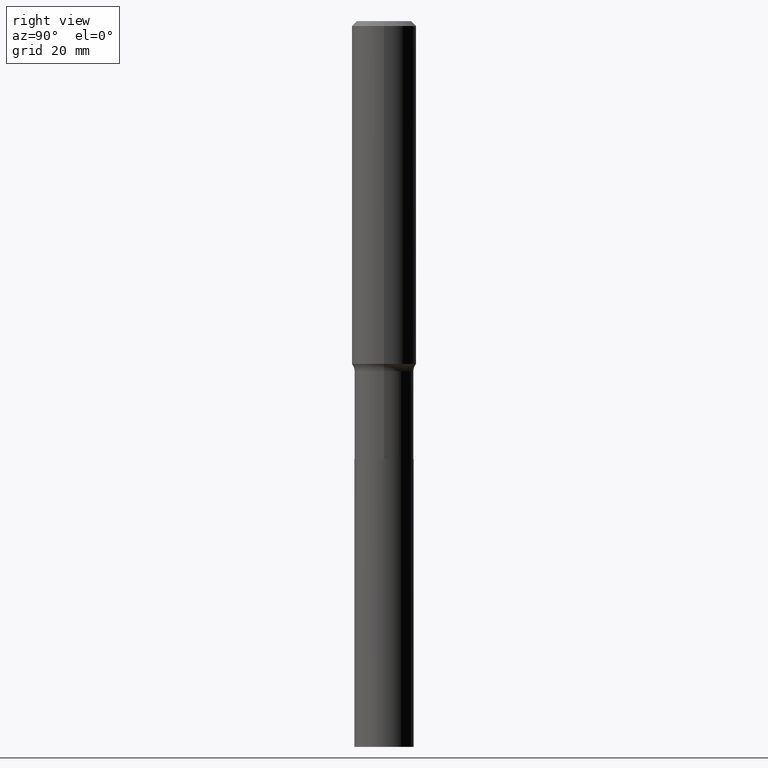
[diagram: clean part render]
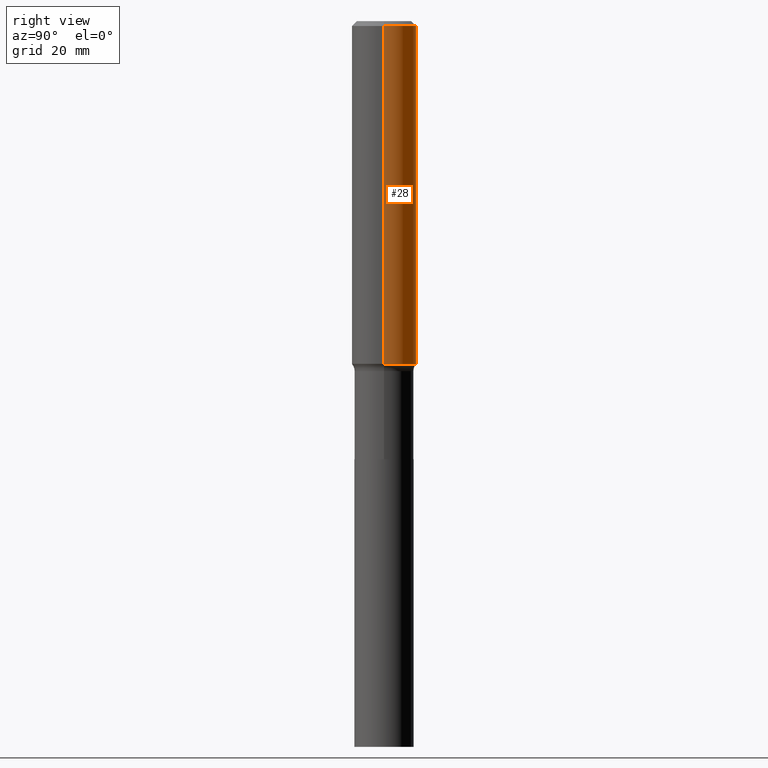
[diagram: same view with one face highlighted and labeled with its STEP entity id]
A machine part, right view. The second image highlights one B-rep face of the part: STEP entity #28.
In plain terms, the highlighted cylindrical surface (edge-blend (fillet) strip) has radius 5.9995 mm, axis along (-0, 0, 1).
Its self-contained STEP definition (entity closure, byte-faithful):
#5 = AXIS2_PLACEMENT_3D ( 'NONE', #292, #16, #157 ) ;
#6 = ORIENTED_EDGE ( 'NONE', *, *, #386, .T. ) ;
#16 = DIRECTION ( 'NONE',  ( -2.445468806185136597E-29, 3.491481338843145583E-15, 1.000000000000000000 ) ) ;
#18 = VERTEX_POINT ( 'NONE', #390 ) ;
#28 = ADVANCED_FACE ( 'NONE', ( #36 ), #95, .T. ) ;
#34 = EDGE_CURVE ( 'NONE', #452, #145, #318, .T. ) ;
#36 = FACE_OUTER_BOUND ( 'NONE', #366, .T. ) ;
#60 = CARTESIAN_POINT ( 'NONE',  ( 0.000000000000000000, 0.000000000000000000, 0.000000000000000000 ) ) ;
#67 = DIRECTION ( 'NONE',  ( -2.445468806185136877E-29, 3.491481338843145188E-15, 1.000000000000000000 ) ) ;
#95 = CYLINDRICAL_SURFACE ( 'NONE', #132, 0.2362000000000001598 ) ;
#132 = AXIS2_PLACEMENT_3D ( 'NONE', #60, #305, #279 ) ;
#145 = VERTEX_POINT ( 'NONE', #383 ) ;
#156 = ORIENTED_EDGE ( 'NONE', *, *, #34, .T. ) ;
#157 = DIRECTION ( 'NONE',  ( 1.000000000000000000, -6.982962677686266711E-15, 0.000000000000000000 ) ) ;
#162 = VECTOR ( 'NONE', #67, 39.37007874015748143 ) ;
#174 = CARTESIAN_POINT ( 'NONE',  ( 6.139311538755103453E-29, -8.765309791191448647E-15, -2.510484502287419595 ) ) ;
#194 = CARTESIAN_POINT ( 'NONE',  ( -0.2362000000000001598, 1.678301941865357775E-15, -1.161852468318209598E-29 ) ) ;
#197 = VERTEX_POINT ( 'NONE', #246 ) ;
#233 = DIRECTION ( 'NONE',  ( 1.000000000000000000, -6.982962677686263555E-15, 0.000000000000000000 ) ) ;
#246 = CARTESIAN_POINT ( 'NONE',  ( -0.2361999999999999933, -2.766204545647972550E-15, -0.03543000000000023908 ) ) ;
#256 = LINE ( 'NONE', #194, #303 ) ;
#260 = EDGE_CURVE ( 'NONE', #452, #18, #286, .T. ) ;
#261 = DIRECTION ( 'NONE',  ( -2.445468806185136877E-29, 3.491481338843145188E-15, 1.000000000000000000 ) ) ;
#268 = ORIENTED_EDGE ( 'NONE', *, *, #409, .F. ) ;
#279 = DIRECTION ( 'NONE',  ( 1.000000000000000000, -6.982962677686266711E-15, 4.876176775795936353E-29 ) ) ;
#286 = LINE ( 'NONE', #395, #162 ) ;
#292 = CARTESIAN_POINT ( 'NONE',  ( 8.664295980313996991E-31, -1.237031838352134818E-16, -0.03543000000000023908 ) ) ;
#303 = VECTOR ( 'NONE', #261, 39.37007874015748143 ) ;
#305 = DIRECTION ( 'NONE',  ( -2.445468806185136597E-29, 3.491481338843145583E-15, 1.000000000000000000 ) ) ;
#318 = CIRCLE ( 'NONE', #355, 0.2362000000000003264 ) ;
#355 = AXIS2_PLACEMENT_3D ( 'NONE', #174, #424, #233 ) ;
#366 = EDGE_LOOP ( 'NONE', ( #156, #6, #268, #440 ) ) ;
#383 = CARTESIAN_POINT ( 'NONE',  ( -0.2362000000000004096, -7.087007849326089886E-15, -2.510484502287419595 ) ) ;
#386 = EDGE_CURVE ( 'NONE', #145, #197, #256, .T. ) ;
#390 = CARTESIAN_POINT ( 'NONE',  ( 0.2361999999999999933, -1.773078968304709711E-15, -0.03543000000000023908 ) ) ;
#395 = CARTESIAN_POINT ( 'NONE',  ( 0.2362000000000001598, -1.649375784469497314E-15, 1.151752954443000929E-29 ) ) ;
#404 = CARTESIAN_POINT ( 'NONE',  ( 0.2362000000000004096, -1.041468557566094675E-14, -2.510484502287419595 ) ) ;
#409 = EDGE_CURVE ( 'NONE', #18, #197, #466, .T. ) ;
#424 = DIRECTION ( 'NONE',  ( -2.445468806185136597E-29, 3.491481338843145583E-15, 1.000000000000000000 ) ) ;
#440 = ORIENTED_EDGE ( 'NONE', *, *, #260, .F. ) ;
#452 = VERTEX_POINT ( 'NONE', #404 ) ;
#466 = CIRCLE ( 'NONE', #5, 0.2361999999999999933 ) ;